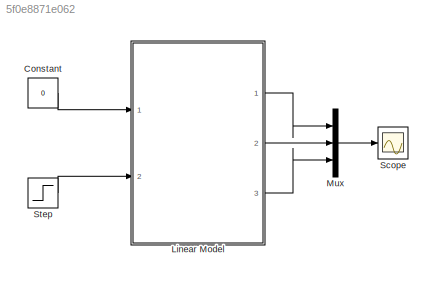
MODEL slx_5f0e8871e062
KIND model
CONFIG AbsTol = auto
CONFIG EnableMultiTasking = off
CONFIG FixedStep = auto
CONFIG MaxStep = auto
CONFIG MinStep = auto
CONFIG RelTol = 1e-3
CONFIG SampleTimeConstraint = Unconstrained
CONFIG Solver = ode4
CONFIG SolverName = ode4
CONFIG StartTime = 0.0
CONFIG StopTime = 10.0
BLOCK [Constant] Constant
  Value = 0
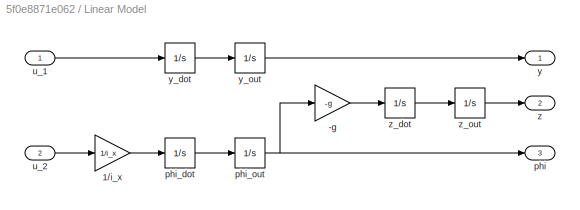
BLOCK [SubSystem] Linear Model
  Ports = [2, 3]
  RequestExecContextInheritance = off
BLOCK [Gain] Linear Model/-g
  Gain = -g
  OutDataTypeStr = Inherit: Inherit via internal rule
  ParamDataTypeStr = Inherit: Inherit via internal rule
  SaturateOnIntegerOverflow = off
BLOCK [Gain] Linear Model/1//i_x
  Gain = 1/i_x
  OutDataTypeStr = Inherit: Inherit via internal rule
  ParamDataTypeStr = Inherit: Inherit via internal rule
  SaturateOnIntegerOverflow = off
BLOCK [Outport] Linear Model/phi
  IconDisplay = Port number
  Port = 3
BLOCK [Integrator] Linear Model/phi_dot
  Ports = [1, 1]
BLOCK [Integrator] Linear Model/phi_out
  Ports = [1, 1]
BLOCK [Inport] Linear Model/u_1
  IconDisplay = Port number
BLOCK [Inport] Linear Model/u_2
  IconDisplay = Port number
  Port = 2
BLOCK [Outport] Linear Model/y
  IconDisplay = Port number
BLOCK [Integrator] Linear Model/y_dot
  Ports = [1, 1]
BLOCK [Integrator] Linear Model/y_out
  Ports = [1, 1]
BLOCK [Outport] Linear Model/z
  IconDisplay = Port number
  Port = 2
BLOCK [Integrator] Linear Model/z_dot
  Ports = [1, 1]
BLOCK [Integrator] Linear Model/z_out
  Ports = [1, 1]
BLOCK [Mux] Mux
  DisplayOption = bar
  Inputs = 3
  Ports = [3, 1]
BLOCK [Scope] Scope
  Floating = off
  NumInputPorts = 1
  Ports = [1]
  ScopeSpecificationString = Simulink.scopes.TimeScopeBlockCfg('CurrentConfiguration', extmgr.ConfigurationSet(extmgr.Configuration('Core','General UI',true),extmgr.Configuration('Core','Source UI',true),extmgr.Configuration('Sources','WiredSimulink',true),extmgr.Configuration('Visuals','Time Domain',true,'SerializedDisplays',{struct('MinYLimReal','-632336.42397','MaxYLimReal','79606.6817','YLabelReal','','MinYLimMag','    0....<+1428ch>
BLOCK [Step] Step
  SampleTime = 0
LINE Constant:1 -> Linear Model:1
LINE Linear Model/-g:1 -> Linear Model/z_dot:1
LINE Linear Model/1//i_x:1 -> Linear Model/phi_dot:1
LINE Linear Model/phi_dot:1 -> Linear Model/phi_out:1
NET Linear Model/phi_out:1 -> Linear Model/-g:1, Linear Model/phi:1
LINE Linear Model/u_1:1 -> Linear Model/y_dot:1
LINE Linear Model/u_2:1 -> Linear Model/1//i_x:1
LINE Linear Model/y_dot:1 -> Linear Model/y_out:1
LINE Linear Model/y_out:1 -> Linear Model/y:1
LINE Linear Model/z_dot:1 -> Linear Model/z_out:1
LINE Linear Model/z_out:1 -> Linear Model/z:1
LINE Linear Model:1 -> Mux:1
LINE Linear Model:2 -> Mux:2
LINE Linear Model:3 -> Mux:3
LINE Mux:1 -> Scope:1
LINE Step:1 -> Linear Model:2
note: NET lines group one-source signal fan-out (src -> all destinations, sorted); 1:1 wires keep LINE
